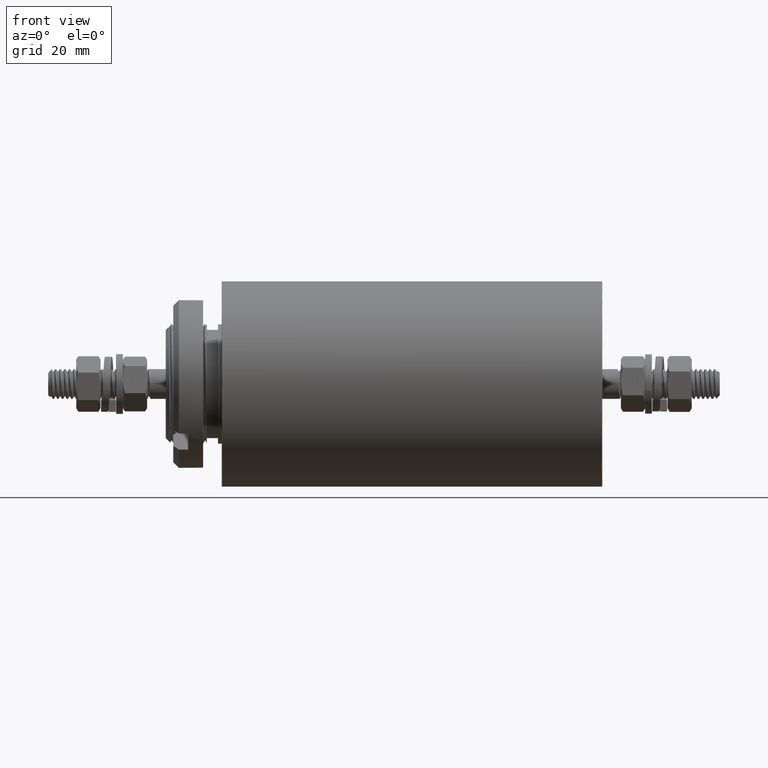
[diagram: clean part render]
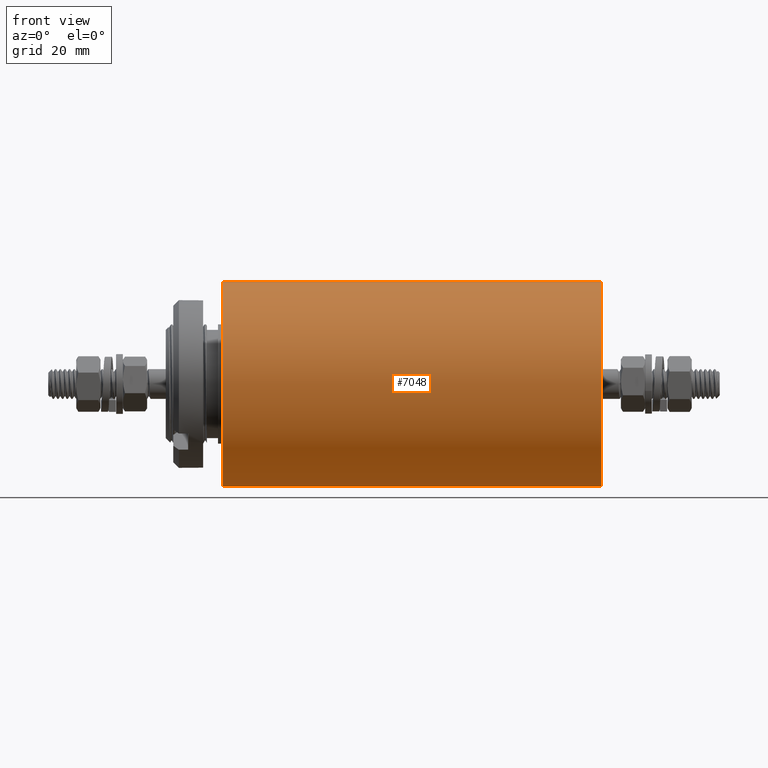
[diagram: same view with one face highlighted and labeled with its STEP entity id]
A machine part, front view. The second image highlights one B-rep face of the part: STEP entity #7048.
In plain terms, the highlighted cylindrical surface (partial cylindrical patch) has radius 27.5 mm, axis along (-1, -0, -0).
Its self-contained STEP definition (entity closure, byte-faithful):
#1352 = AXIS2_PLACEMENT_3D ( 'NONE', #12540, #22389, #24456 ) ;
#1375 = AXIS2_PLACEMENT_3D ( 'NONE', #6362, #15979, #8670 ) ;
#2289 = LINE ( 'NONE', #6141, #23953 ) ;
#3985 = DIRECTION ( 'NONE',  ( -1.000000000000000000, -0.000000000000000000, -0.000000000000000000 ) ) ;
#4149 = VERTEX_POINT ( 'NONE', #11578 ) ;
#4184 = VERTEX_POINT ( 'NONE', #9518 ) ;
#4659 = VERTEX_POINT ( 'NONE', #10487 ) ;
#4712 = CYLINDRICAL_SURFACE ( 'NONE', #1352, 27.49999999999999645 ) ;
#5730 = EDGE_CURVE ( 'NONE', #4184, #12112, #2289, .T. ) ;
#6141 = CARTESIAN_POINT ( 'NONE',  ( 102.0000000000000000, 3.367778697655220913E-15, -27.49999999999999645 ) ) ;
#6362 = CARTESIAN_POINT ( 'NONE',  ( 101.7999999999999829, 0.000000000000000000, 0.000000000000000000 ) ) ;
#7048 = ADVANCED_FACE ( 'NONE', ( #14446 ), #4712, .T. ) ;
#7974 = ORIENTED_EDGE ( 'NONE', *, *, #20728, .T. ) ;
#8670 = DIRECTION ( 'NONE',  ( 0.000000000000000000, 0.000000000000000000, -1.000000000000000000 ) ) ;
#9518 = CARTESIAN_POINT ( 'NONE',  ( 101.7999999999999829, 3.367778697655220913E-15, -27.49999999999999645 ) ) ;
#9566 = CARTESIAN_POINT ( 'NONE',  ( 102.0000000000000000, 0.000000000000000000, 27.49999999999999645 ) ) ;
#10487 = CARTESIAN_POINT ( 'NONE',  ( 0.2000000000000057288, 0.000000000000000000, 27.49999999999999645 ) ) ;
#11578 = CARTESIAN_POINT ( 'NONE',  ( 101.7999999999999829, 0.000000000000000000, 27.49999999999999645 ) ) ;
#12112 = VERTEX_POINT ( 'NONE', #15601 ) ;
#12264 = ORIENTED_EDGE ( 'NONE', *, *, #16347, .T. ) ;
#12540 = CARTESIAN_POINT ( 'NONE',  ( 102.0000000000000000, 0.000000000000000000, 0.000000000000000000 ) ) ;
#13674 = CIRCLE ( 'NONE', #1375, 27.49999999999999645 ) ;
#14323 = CIRCLE ( 'NONE', #20483, 27.49999999999999645 ) ;
#14413 = ORIENTED_EDGE ( 'NONE', *, *, #19760, .T. ) ;
#14446 = FACE_OUTER_BOUND ( 'NONE', #18136, .T. ) ;
#15494 = DIRECTION ( 'NONE',  ( 0.000000000000000000, 0.000000000000000000, -1.000000000000000000 ) ) ;
#15601 = CARTESIAN_POINT ( 'NONE',  ( 0.2000000000000057288, 3.367778697655220913E-15, -27.49999999999999645 ) ) ;
#15979 = DIRECTION ( 'NONE',  ( -1.000000000000000000, -0.000000000000000000, -0.000000000000000000 ) ) ;
#16347 = EDGE_CURVE ( 'NONE', #4659, #12112, #14323, .T. ) ;
#18066 = ORIENTED_EDGE ( 'NONE', *, *, #5730, .F. ) ;
#18136 = EDGE_LOOP ( 'NONE', ( #18066, #7974, #14413, #12264 ) ) ;
#18301 = CARTESIAN_POINT ( 'NONE',  ( 0.2000000000000057288, 0.000000000000000000, 0.000000000000000000 ) ) ;
#19338 = DIRECTION ( 'NONE',  ( 1.000000000000000000, 0.000000000000000000, 0.000000000000000000 ) ) ;
#19760 = EDGE_CURVE ( 'NONE', #4149, #4659, #21338, .T. ) ;
#20483 = AXIS2_PLACEMENT_3D ( 'NONE', #18301, #19338, #15494 ) ;
#20728 = EDGE_CURVE ( 'NONE', #4184, #4149, #13674, .T. ) ;
#21338 = LINE ( 'NONE', #9566, #22637 ) ;
#22389 = DIRECTION ( 'NONE',  ( -1.000000000000000000, -0.000000000000000000, -0.000000000000000000 ) ) ;
#22637 = VECTOR ( 'NONE', #25075, 1000.000000000000000 ) ;
#23953 = VECTOR ( 'NONE', #3985, 1000.000000000000000 ) ;
#24456 = DIRECTION ( 'NONE',  ( 0.000000000000000000, 0.000000000000000000, 1.000000000000000000 ) ) ;
#25075 = DIRECTION ( 'NONE',  ( -1.000000000000000000, -0.000000000000000000, -0.000000000000000000 ) ) ;